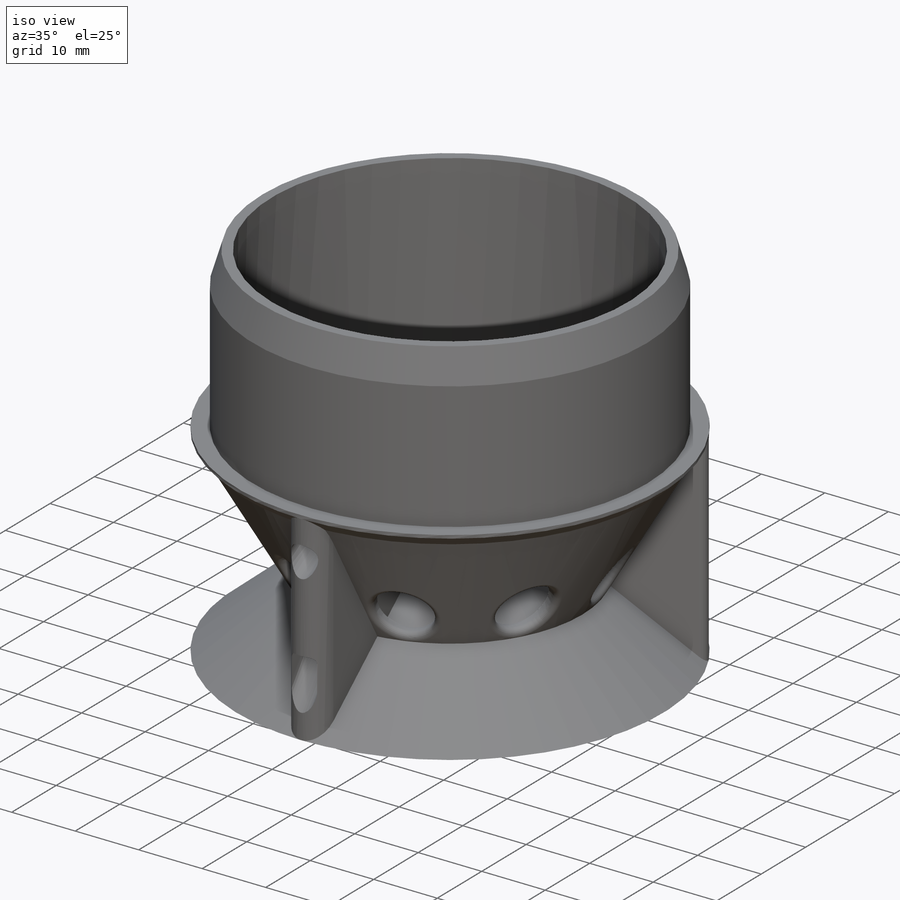
[diagram: iso view]
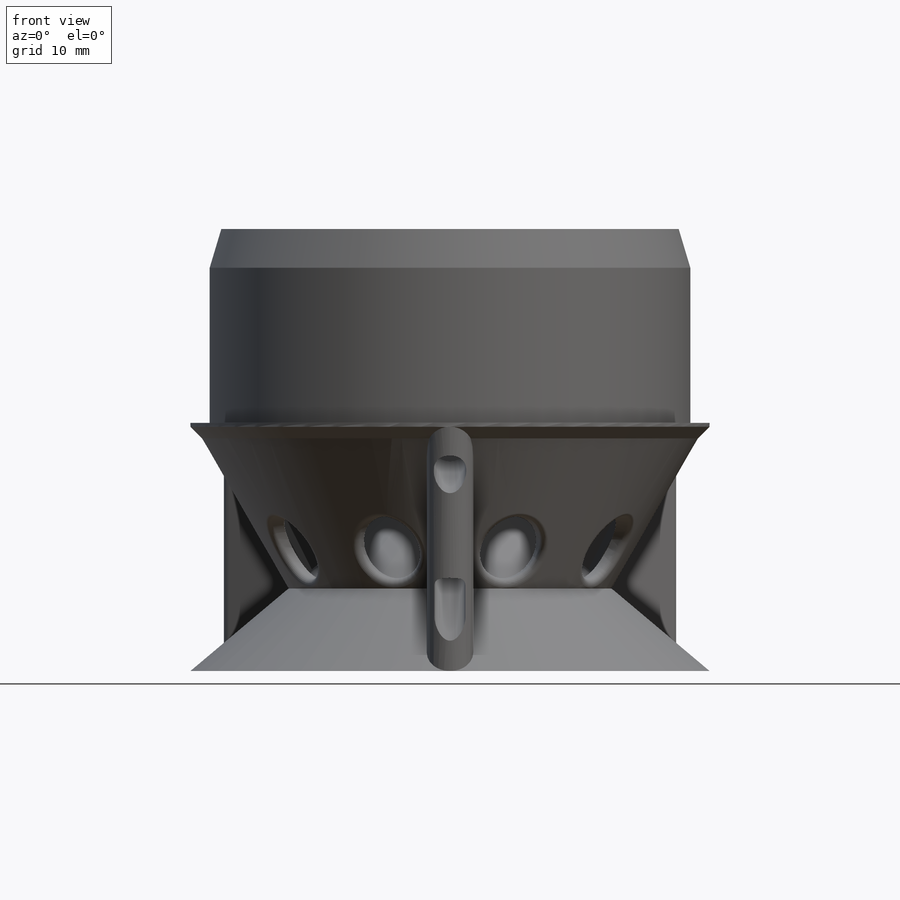
[diagram: front view]
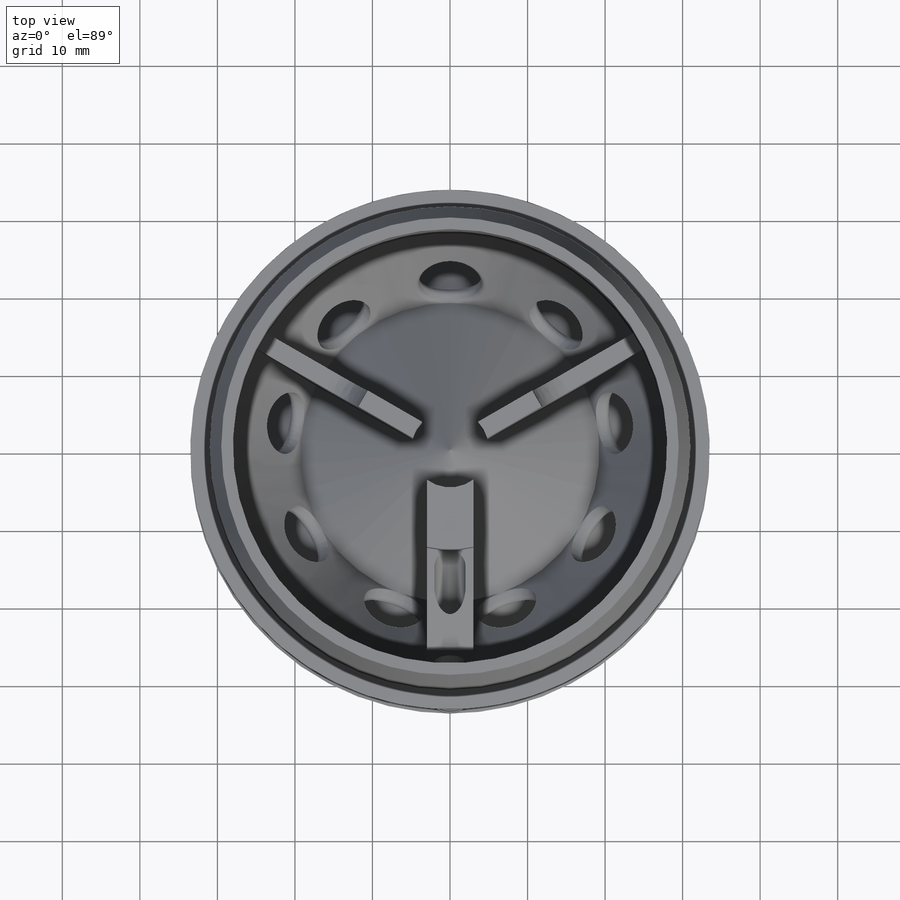
[diagram: top view]
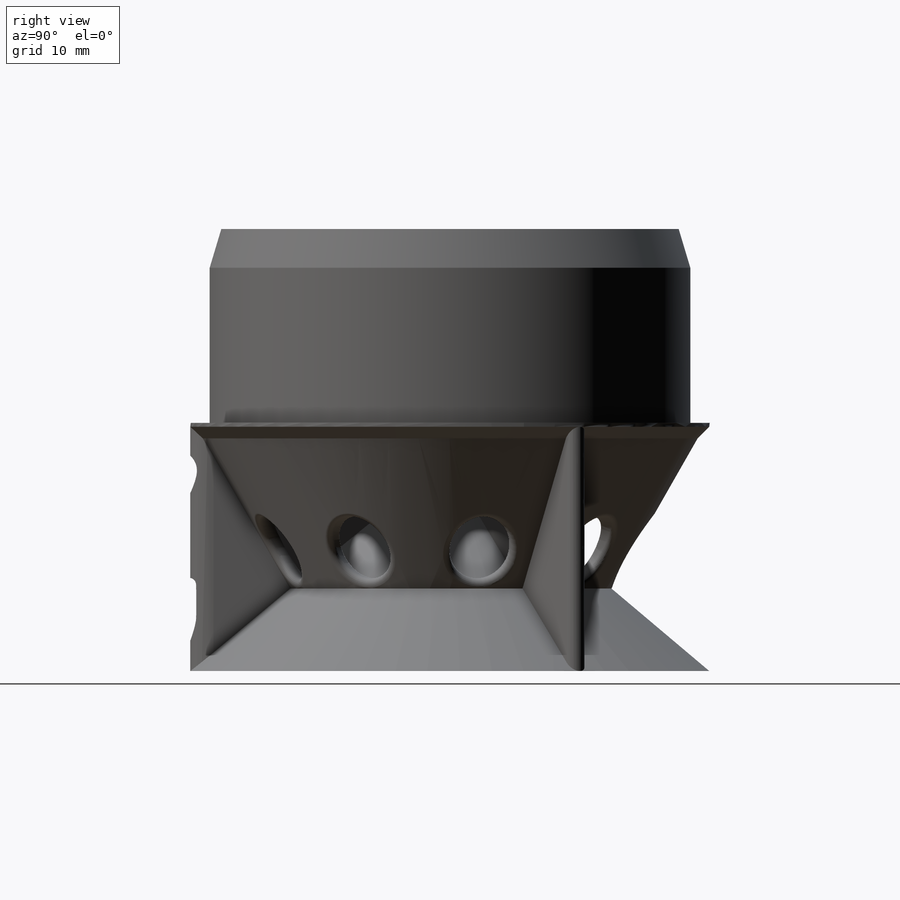
[diagram: right view]
SOLIDWORKS PART (.sldprt)
format: sldprt  version: not decoded by parser v0  size: 850,432 bytes
history: native  units: mm
features: sketch x8, plane x5, cut_extrude x3, extrude x2, fillet x2, material x1, revolve x1, pattern_circular x1 (+13 scaffold rows collapsed)
feature tree (36):
  scaffold x13  (default folders/planes/origin — collapsed)
  material  "Material <not specified>"
  sketch  "Sketch2"  dims[c1.D12=22.0mm c1.D17=1.0mm c1.D1=5.0mm c1.D2=~22.951637mm c2.D2=45.0deg c2.D3=2.0mm c2.D4=2.0mm c2.D5=3.0mm c2.D6=30.0mm c2.D7=25.0mm c2.D8=1.5mm c2.D9=5.0mm c2.D10=31.0mm c2.D11=33.5mm c3.D2=~16.336356mm c4.D2=50.0deg c4.D13=15.0mm c4.D6=33.5mm c4.D14=30.0mm c4.D17=~31.323446mm c5.D17=50.0deg c5.D13=25.0mm c6.D17=~2.610815mm c6.D2=2.0mm c6.D3=55.0mm c7.D3=30.0deg c7.D12=~25.499023mm c8.D12=50.0deg c8.D1=10.0mm c8.D16=2.0mm]
  revolve  "Revolve1"  Angle=360deg
  plane  "Plane1"
  plane  "Plane2"  Offset=35mm
  plane  "Plane3"  Offset=35mm
  plane  "Plane4"
  plane  "Plane5"  Offset=1.3mm
  sketch  "Sketch3"  dims[c1.D9=10.0mm c1.D1=32.0mm c2.D1=120.0deg c2.D2=~29.483657mm c3.D2=120.0deg c3.D3=3.0mm c3.D4=3.0mm c3.D5=1.2mm c3.D6=1.2mm c3.D7=1.2mm c3.D8=1.2mm c4.D3=1.2mm c4.D4=1.2mm]
  extrude  "Boss-Extrude1"  [1 undecoded]
  sketch  "Sketch5"  dims[D1=4.0mm D2=15.0mm D3=3.0mm]
  sketch  "Sketch6"  dims[D1=4.0mm D2=8.0mm D3=4.0mm]
  sketch  "Sketch8"  dims[D1=8.0mm D2=20.0mm]
  cut_extrude  "Cut-Extrude5"  [1 undecoded]
  fillet  "Fillet1"  Radius=0.8mm
  pattern_circular  "CirPattern1"  Count=9 Angle=360deg
  sketch  "Sketch9"  dims[D1=0.0mm D2=0.0mm D3=0.0mm D4=8.0mm D5=8.0mm]
  extrude  "Boss-Extrude3"  Depth=8mm
  fillet  "Fillet2"  Radius=5mm
  sketch  "Sketch10"  dims[D1=4.2mm D2=11.0mm]
  cut_extrude  "Cut-Extrude6"  Depth=8mm
  sketch  "Sketch11"  dims[D1=7.0mm D2=6.0mm]
  cut_extrude  "Cut-Extrude7"  [1 undecoded]
decode coverage: 14 of 17 modeling features carry decoded parameters
note: ~ marks probable driven/reference dimensions
note: 3 parameter values undecoded
summary: no parameter record found for 3 features
note: suppression state not decoded; provenance and decode notes live in map.json
